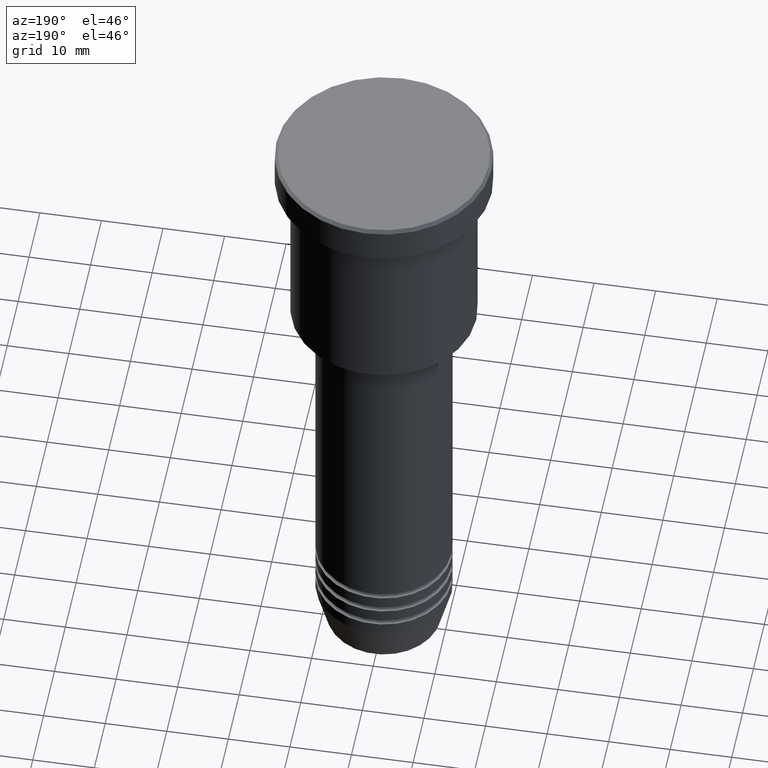
[diagram: clean part render]
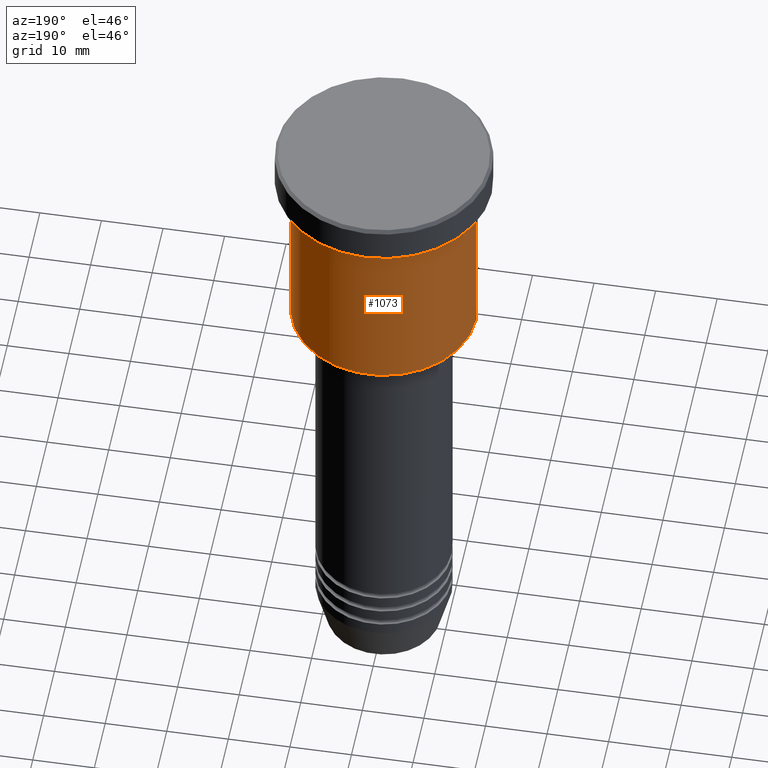
[diagram: same view with one face highlighted and labeled with its STEP entity id]
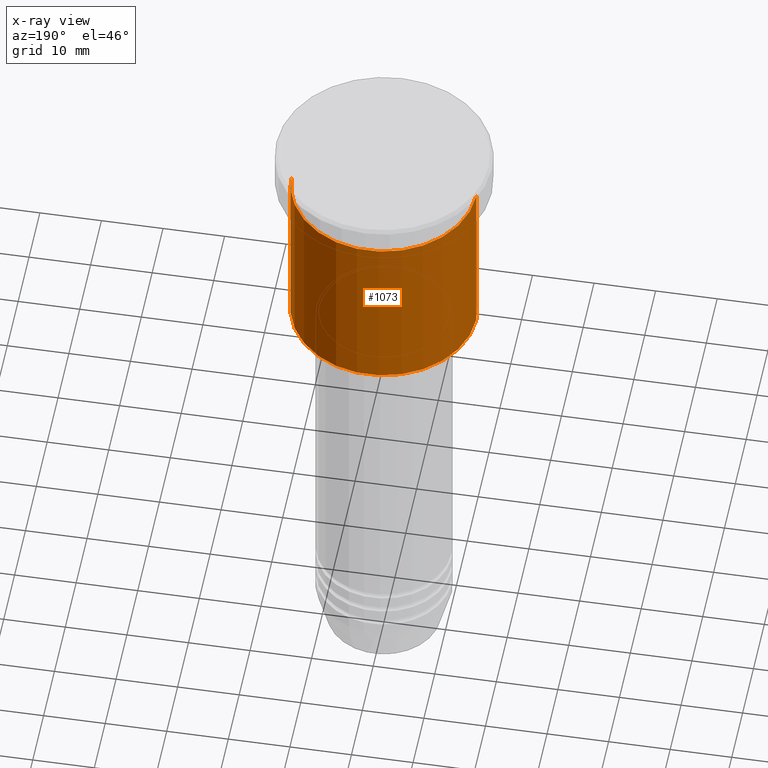
[diagram: x-ray of the same camera — body ghosted, the highlighted face saturated]
A machine part, auxiliary view. The second image highlights one B-rep face of the part: STEP entity #1073.
The next image is the same camera in x-ray: the body ghosted, the highlighted face saturated — about 0% of this face is hidden behind the body in this view.
In plain terms, the highlighted cylindrical surface (partial cylindrical patch) has radius 15 mm, axis along (-0, -0, 1).
Its self-contained STEP definition (entity closure, byte-faithful):
#98 = LINE ( 'NONE', #461, #674 ) ;
#142 = ORIENTED_EDGE ( 'NONE', *, *, #1057, .T. ) ;
#202 = DIRECTION ( 'NONE',  ( -0.000000000000000000, -0.000000000000000000, 1.000000000000000000 ) ) ;
#217 = DIRECTION ( 'NONE',  ( -0.000000000000000000, -0.000000000000000000, 1.000000000000000000 ) ) ;
#244 = VECTOR ( 'NONE', #217, 1000.000000000000000 ) ;
#290 = CARTESIAN_POINT ( 'NONE',  ( 0.000000000000000000, 0.000000000000000000, -6.999999999999995559 ) ) ;
#295 = DIRECTION ( 'NONE',  ( -1.000000000000000000, 0.000000000000000000, 0.000000000000000000 ) ) ;
#307 = DIRECTION ( 'NONE',  ( 1.000000000000000000, 0.000000000000000000, 0.000000000000000000 ) ) ;
#362 = VERTEX_POINT ( 'NONE', #526 ) ;
#392 = DIRECTION ( 'NONE',  ( -0.000000000000000000, -0.000000000000000000, 1.000000000000000000 ) ) ;
#395 = AXIS2_PLACEMENT_3D ( 'NONE', #290, #392, #1104 ) ;
#421 = ORIENTED_EDGE ( 'NONE', *, *, #546, .F. ) ;
#428 = CARTESIAN_POINT ( 'NONE',  ( -15.00000000000000000, 1.836970198721029589E-15, -35.49999999999997868 ) ) ;
#452 = AXIS2_PLACEMENT_3D ( 'NONE', #848, #941, #295 ) ;
#461 = CARTESIAN_POINT ( 'NONE',  ( 15.00000000000000000, 0.000000000000000000, 0.000000000000000000 ) ) ;
#493 = CIRCLE ( 'NONE', #452, 15.00000000000000000 ) ;
#526 = CARTESIAN_POINT ( 'NONE',  ( -15.00000000000000000, 1.836970198721029589E-15, -6.999999999999995559 ) ) ;
#546 = EDGE_CURVE ( 'NONE', #593, #1017, #98, .T. ) ;
#593 = VERTEX_POINT ( 'NONE', #1113 ) ;
#605 = AXIS2_PLACEMENT_3D ( 'NONE', #651, #202, #307 ) ;
#651 = CARTESIAN_POINT ( 'NONE',  ( 0.000000000000000000, 0.000000000000000000, 0.000000000000000000 ) ) ;
#674 = VECTOR ( 'NONE', #824, 1000.000000000000000 ) ;
#728 = ORIENTED_EDGE ( 'NONE', *, *, #1150, .T. ) ;
#775 = CARTESIAN_POINT ( 'NONE',  ( -15.00000000000000000, 1.836970198721029589E-15, 0.000000000000000000 ) ) ;
#824 = DIRECTION ( 'NONE',  ( -0.000000000000000000, -0.000000000000000000, 1.000000000000000000 ) ) ;
#848 = CARTESIAN_POINT ( 'NONE',  ( 0.000000000000000000, 0.000000000000000000, -35.49999999999997868 ) ) ;
#858 = VERTEX_POINT ( 'NONE', #428 ) ;
#875 = LINE ( 'NONE', #775, #244 ) ;
#934 = CARTESIAN_POINT ( 'NONE',  ( 15.00000000000000000, 0.000000000000000000, -6.999999999999995559 ) ) ;
#941 = DIRECTION ( 'NONE',  ( -0.000000000000000000, -0.000000000000000000, 1.000000000000000000 ) ) ;
#983 = ORIENTED_EDGE ( 'NONE', *, *, #1016, .F. ) ;
#1016 = EDGE_CURVE ( 'NONE', #1017, #362, #1100, .T. ) ;
#1017 = VERTEX_POINT ( 'NONE', #934 ) ;
#1057 = EDGE_CURVE ( 'NONE', #593, #858, #493, .T. ) ;
#1073 = ADVANCED_FACE ( 'NONE', ( #1106 ), #1117, .T. ) ;
#1100 = CIRCLE ( 'NONE', #395, 15.00000000000000000 ) ;
#1104 = DIRECTION ( 'NONE',  ( 1.000000000000000000, 0.000000000000000000, 0.000000000000000000 ) ) ;
#1106 = FACE_OUTER_BOUND ( 'NONE', #1138, .T. ) ;
#1113 = CARTESIAN_POINT ( 'NONE',  ( 15.00000000000000000, 0.000000000000000000, -35.49999999999997868 ) ) ;
#1117 = CYLINDRICAL_SURFACE ( 'NONE', #605, 15.00000000000000000 ) ;
#1138 = EDGE_LOOP ( 'NONE', ( #142, #728, #983, #421 ) ) ;
#1150 = EDGE_CURVE ( 'NONE', #858, #362, #875, .T. ) ;